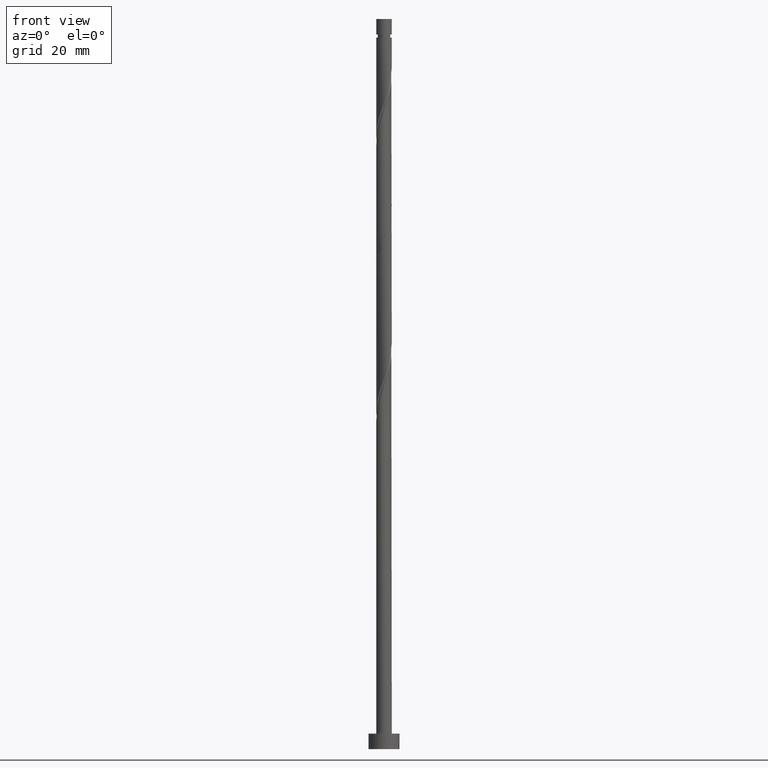
[diagram: clean part render]
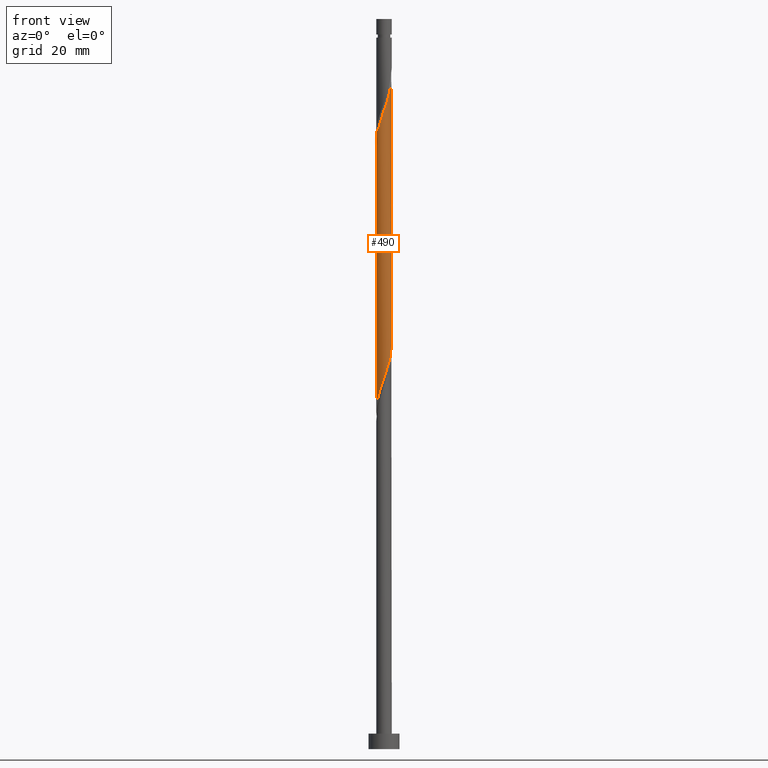
[diagram: same view with one face highlighted and labeled with its STEP entity id]
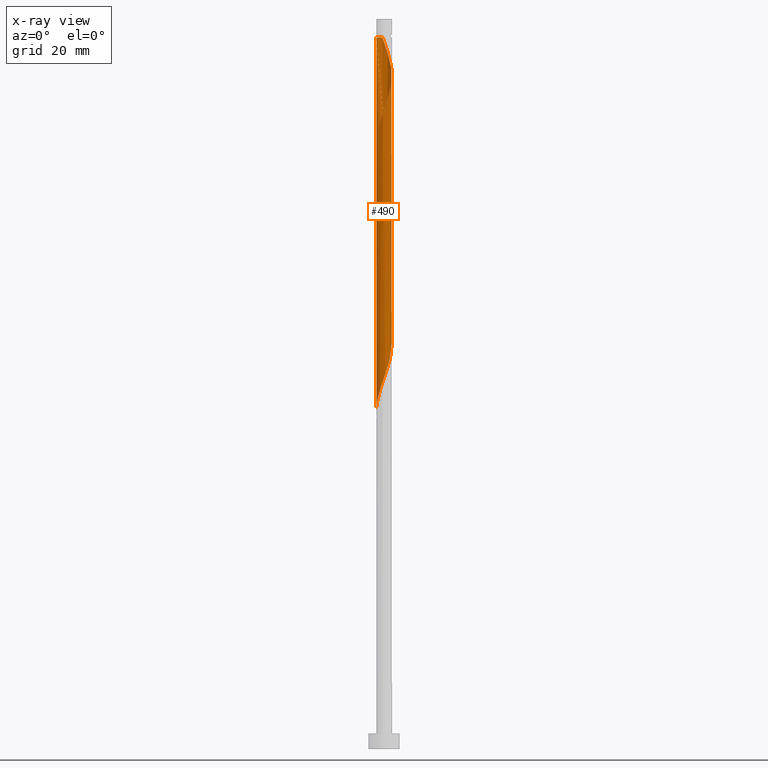
[diagram: x-ray of the same camera — body ghosted, the highlighted face saturated]
A machine part, front view. The second image highlights one B-rep face of the part: STEP entity #490.
The next image is the same camera in x-ray: the body ghosted, the highlighted face saturated — about 0% of this face is hidden behind the body in this view.
In plain terms, the highlighted cylindrical surface (bore or boss wall) has radius 1.5 mm, axis along (-0, -0, -1).
Its self-contained STEP definition (entity closure, byte-faithful):
#2 = CARTESIAN_POINT ( 'NONE',  ( -0.8912534666523059812, -1.225634408494018945, 69.32556668056672322 ) ) ;
#6 = CARTESIAN_POINT ( 'NONE',  ( -0.5436309926831534023, -1.398021939668450342, 122.0528394078394570 ) ) ;
#9 = CARTESIAN_POINT ( 'NONE',  ( 0.8912534666523060922, 1.225634408494018945, 109.3255666805667232 ) ) ;
#56 = CARTESIAN_POINT ( 'NONE',  ( 1.509919581836498992, -0.1290554202307516996, 129.9316272866273891 ) ) ;
#75 = CARTESIAN_POINT ( 'NONE',  ( 0.3426257832300799722, 1.476184276359228331, 135.9922333472334230 ) ) ;
#80 = CARTESIAN_POINT ( 'NONE',  ( 1.500000000000000666, -1.824732125826558579E-15, 105.3265363113827817 ) ) ;
#82 = CARTESIAN_POINT ( 'NONE',  ( 1.213159217434436332, 0.8821817914431659968, 132.9619303169303350 ) ) ;
#95 = LINE ( 'NONE', #217, #1092 ) ;
#99 = CARTESIAN_POINT ( 'NONE',  ( 1.306425335299753687, 0.7370568792752205667, 80.84071819571825301 ) ) ;
#101 = ORIENTED_EDGE ( 'NONE', *, *, #935, .F. ) ;
#108 = CARTESIAN_POINT ( 'NONE',  ( 0.7005518949784518279, 1.326358564808966412, 83.26496061996067510 ) ) ;
#113 = CARTESIAN_POINT ( 'NONE',  ( -0.8912534666523059812, -1.225634408494018945, 95.99223334723342305 ) ) ;
#119 = CARTESIAN_POINT ( 'NONE',  ( 0.5098503233045974525, -1.427082721123916764, 125.0831424381425023 ) ) ;
#123 = CARTESIAN_POINT ( 'NONE',  ( 1.339997810401561740, -0.7077558288161657218, 76.59829395329401791 ) ) ;
#130 = CARTESIAN_POINT ( 'NONE',  ( -1.461158848907850416, -0.3391383467823806952, 66.29526365026370627 ) ) ;
#157 = DIRECTION ( 'NONE',  ( -0.000000000000000000, -0.000000000000000000, -1.000000000000000000 ) ) ;
#164 = CARTESIAN_POINT ( 'NONE',  ( 0.5098503233045974525, 1.427082721123913878, 110.5376878926879272 ) ) ;
#183 = CARTESIAN_POINT ( 'NONE',  ( -1.500000000000002665, 1.002106987134251127E-15, 116.9609606861143618 ) ) ;
#192 = CARTESIAN_POINT ( 'NONE',  ( 1.500000000000000666, -1.824732125826558579E-15, 105.3265363113827817 ) ) ;
#194 = CARTESIAN_POINT ( 'NONE',  ( 1.339997810401564182, 0.7077558288161660549, 132.3558697108697970 ) ) ;
#203 = CARTESIAN_POINT ( 'NONE',  ( 1.485116343010916440, 0.3015657354974664583, 131.1437484987486073 ) ) ;
#205 = CARTESIAN_POINT ( 'NONE',  ( 1.500000000000000666, -1.824732125826558579E-15, 105.3265363113827817 ) ) ;
#217 = CARTESIAN_POINT ( 'NONE',  ( -1.500000000000000222, 0.000000000000000000, 141.4300000000000068 ) ) ;
#222 = EDGE_CURVE ( 'NONE', #1466, #1008, #692, .T. ) ;
#223 = CARTESIAN_POINT ( 'NONE',  ( -1.086320624467306262, 1.056607754070165273, 88.71950607450611415 ) ) ;
#232 = CARTESIAN_POINT ( 'NONE',  ( 0.5436309926831524031, -1.398021939668448788, 73.56799092299098675 ) ) ;
#238 = CARTESIAN_POINT ( 'NONE',  ( -1.412398115979204061, -0.5492212733340106068, 93.56799092299098675 ) ) ;
#245 = CARTESIAN_POINT ( 'NONE',  ( -0.3426257832300790840, 1.476184276359226111, 86.29526365026370627 ) ) ;
#252 = CARTESIAN_POINT ( 'NONE',  ( 0.8912534666523060922, 1.225634408494018945, 82.65890001390009445 ) ) ;
#254 = DIRECTION ( 'NONE',  ( -0.000000000000000000, -0.000000000000000000, -1.000000000000000000 ) ) ;
#261 = ORIENTED_EDGE ( 'NONE', *, *, #390, .F. ) ;
#266 = EDGE_LOOP ( 'NONE', ( #261, #298, #1161, #630, #307, #531, #1036, #101 ) ) ;
#286 = CARTESIAN_POINT ( 'NONE',  ( -1.339997810401561740, 0.7077558288161657218, 116.5982939532940179 ) ) ;
#298 = ORIENTED_EDGE ( 'NONE', *, *, #222, .T. ) ;
#304 = CARTESIAN_POINT ( 'NONE',  ( -0.2984962311320397688, 1.470000000000534435, 137.8104151654152361 ) ) ;
#307 = ORIENTED_EDGE ( 'NONE', *, *, #884, .F. ) ;
#310 = CARTESIAN_POINT ( 'NONE',  ( 0.000000000000000000, 0.000000000000000000, 141.4300000000000068 ) ) ;
#311 = CARTESIAN_POINT ( 'NONE',  ( -0.7446362021362256112, 1.319859602977670798, 114.1740515290515958 ) ) ;
#318 = AXIS2_PLACEMENT_3D ( 'NONE', #1391, #789, #1193 ) ;
#322 = VECTOR ( 'NONE', #254, 1000.000000000000000 ) ;
#335 = CARTESIAN_POINT ( 'NONE',  ( 0.7446362021362251671, -1.319859602977671464, 100.8407181957182530 ) ) ;
#342 = CARTESIAN_POINT ( 'NONE',  ( -1.339997810401561740, 0.7077558288161657218, 89.93162728662736072 ) ) ;
#349 = CARTESIAN_POINT ( 'NONE',  ( 0.5436309926831524031, -1.398021939668448788, 100.2346575896576724 ) ) ;
#351 = EDGE_CURVE ( 'NONE', #1086, #1008, #1471, .T. ) ;
#355 = CARTESIAN_POINT ( 'NONE',  ( 1.497517962423705384, -0.08625515763335814268, 78.41647577147585935 ) ) ;
#360 = CARTESIAN_POINT ( 'NONE',  ( 0.9154784133017656034, -1.188233678523918035, 74.78011213511220490 ) ) ;
#363 = CARTESIAN_POINT ( 'NONE',  ( 0.08714213895937543419, -1.512917278876089178, 123.8710212260212984 ) ) ;
#390 = EDGE_CURVE ( 'NONE', #1466, #1343, #1219, .T. ) ;
#402 = CARTESIAN_POINT ( 'NONE',  ( -0.3426257832300790840, 1.476184276359226111, 112.9619303169304061 ) ) ;
#411 = CARTESIAN_POINT ( 'NONE',  ( -0.08714213895937734933, 1.512917278876088956, 137.2043545593546696 ) ) ;
#418 = CARTESIAN_POINT ( 'NONE',  ( -1.500000000000000444, 1.510638891053134665E-15, 65.32653631138276751 ) ) ;
#434 = CARTESIAN_POINT ( 'NONE',  ( 0.1277418221353523453, 1.494550777617657866, 136.5982939532939326 ) ) ;
#437 = CARTESIAN_POINT ( 'NONE',  ( 1.497517962423705384, -0.08625515763335814268, 105.0831424381425165 ) ) ;
#448 = CARTESIAN_POINT ( 'NONE',  ( 1.086320624467306484, -1.056607754070165051, 75.38617274117281397 ) ) ;
#457 = CARTESIAN_POINT ( 'NONE',  ( 0.1277418221353513184, -1.494550777617656756, 72.35586971086975439 ) ) ;
#466 = CARTESIAN_POINT ( 'NONE',  ( 0.1277418221353513184, -1.494550777617656756, 99.02253637753642579 ) ) ;
#469 = CARTESIAN_POINT ( 'NONE',  ( -1.412557076706239423, -0.5046607821568164232, 118.4164757714758025 ) ) ;
#473 = CARTESIAN_POINT ( 'NONE',  ( 1.509919581836497215, 0.1290554202307506448, 79.02253637753645421 ) ) ;
#479 = CARTESIAN_POINT ( 'NONE',  ( 1.200452554620303314, 0.9248924852164298605, 81.44677880177884788 ) ) ;
#483 = CARTESIAN_POINT ( 'NONE',  ( -1.339997810401564182, -0.7077558288161663880, 119.0225363775364542 ) ) ;
#486 = CARTESIAN_POINT ( 'NONE',  ( 1.499999999999999778, 0.1717933910776870965, 105.8124962643540812 ) ) ;
#490 = ADVANCED_FACE ( 'NONE', ( #1225 ), #1370, .T. ) ;
#496 = CARTESIAN_POINT ( 'NONE',  ( -0.1277418221353517902, 1.494550777617656534, 112.3558697108697828 ) ) ;
#516 = DIRECTION ( 'NONE',  ( -0.000000000000000000, -0.000000000000000000, -1.000000000000000000 ) ) ;
#518 = AXIS2_PLACEMENT_3D ( 'NONE', #310, #516, #1475 ) ;
#526 = CARTESIAN_POINT ( 'NONE',  ( -1.213159217434434112, 0.8821817914431654417, 115.9922333472333946 ) ) ;
#531 = ORIENTED_EDGE ( 'NONE', *, *, #540, .F. ) ;
#533 = CARTESIAN_POINT ( 'NONE',  ( -1.412557076706237646, 0.5046607821568160901, 117.2043545593546554 ) ) ;
#540 = EDGE_CURVE ( 'NONE', #650, #1358, #1361, .T. ) ;
#577 = CARTESIAN_POINT ( 'NONE',  ( 1.412398115979204505, 0.5492212733340096076, 80.23465758965762973 ) ) ;
#583 = CARTESIAN_POINT ( 'NONE',  ( 0.7005518949784519389, -1.326358564808968410, 125.6892030442030830 ) ) ;
#586 = CARTESIAN_POINT ( 'NONE',  ( 1.339997810401561740, -0.7077558288161657218, 103.2649606199606609 ) ) ;
#590 = CARTESIAN_POINT ( 'NONE',  ( 0.8912534666523075355, -1.225634408494020944, 126.2952636502637205 ) ) ;
#592 = CARTESIAN_POINT ( 'NONE',  ( -1.485116343010912665, 0.3015657354974666249, 91.14374849874855045 ) ) ;
#597 = CARTESIAN_POINT ( 'NONE',  ( 1.045853010636305980, -1.075263446855226235, 126.9013242563243011 ) ) ;
#600 = CARTESIAN_POINT ( 'NONE',  ( 1.213159217434434334, -0.8821817914431652197, 75.99223334723339462 ) ) ;
#611 = CARTESIAN_POINT ( 'NONE',  ( -1.500000000000000444, -0.1717933910776834328, 65.81249626435409539 ) ) ;
#619 = CARTESIAN_POINT ( 'NONE',  ( -0.5436309926831524031, 1.398021939668448788, 113.5679909229909867 ) ) ;
#630 = ORIENTED_EDGE ( 'NONE', *, *, #1199, .T. ) ;
#650 = VERTEX_POINT ( 'NONE', #1084 ) ;
#660 = CARTESIAN_POINT ( 'NONE',  ( 1.461158848907850638, 0.3391383467823803066, 106.2952636502636921 ) ) ;
#692 = CIRCLE ( 'NONE', #318, 1.499999999999995781 ) ;
#697 = CARTESIAN_POINT ( 'NONE',  ( 0.2984962311319867001, 1.469999999999999973, 84.47708183208190746 ) ) ;
#704 = CARTESIAN_POINT ( 'NONE',  ( -0.2984962311319864781, -1.469999999999999973, 71.14374849874856466 ) ) ;
#711 = CARTESIAN_POINT ( 'NONE',  ( -1.497517962423705384, 0.08625515763335793451, 91.74980910480915952 ) ) ;
#718 = CARTESIAN_POINT ( 'NONE',  ( 0.5098503233045974525, 1.427082721123913878, 83.87102122602126997 ) ) ;
#727 = CARTESIAN_POINT ( 'NONE',  ( -0.5436309926831524031, 1.398021939668448788, 86.90132425632431534 ) ) ;
#744 = CARTESIAN_POINT ( 'NONE',  ( -1.500000000000002887, -0.04316328978573677477, 117.0830586908325728 ) ) ;
#765 = CARTESIAN_POINT ( 'NONE',  ( -0.2984962311320397133, 1.470000000000534435, 137.8104151654152361 ) ) ;
#780 = CARTESIAN_POINT ( 'NONE',  ( 1.306425335299753687, 0.7370568792752205667, 107.5073848623849386 ) ) ;
#789 = DIRECTION ( 'NONE',  ( -0.000000000000000000, -0.000000000000000000, -1.000000000000000000 ) ) ;
#791 =( BOUNDED_CURVE ( )  B_SPLINE_CURVE ( 2, ( #205, #1505, #437, #1397, #810, #586, #1159, #1418, #1181, #335, #349, #946, #466, #1060, #827, #1411, #1068, #113, #1405, #938, #1279, #238, #1287, #818, #711, #592, #1082, #342, #1299, #223, #952, #1530, #727, #245, #1293, #1425, #697, #718, #108, #252, #1174, #479, #99, #577, #1539, #473, #355, #834, #1054, #123, #600, #448, #360, #1520, #232, #842, #457, #930, #704, #1076, #1168, #2, #1307, #957, #1429, #1189, #130, #611, #418 ),
 .UNSPECIFIED., .F., .T. ) 
 B_SPLINE_CURVE_WITH_KNOTS ( ( 3, 2, 2, 2, 2, 2, 2, 2, 2, 2, 2, 2, 2, 2, 2, 2, 2, 2, 2, 2, 2, 2, 2, 2, 2, 2, 2, 2, 2, 2, 2, 2, 2, 2, 3 ),
 ( 0.5545252162417511066, 0.5568181818181817677, 0.5681818181818182323, 0.5795454545454545858, 0.5909090909090909394, 0.6022727272727272929, 0.6136363636363636465, 0.6250000000000000000, 0.6363636363636363535, 0.6477272727272727071, 0.6590909090909090606, 0.6704545454545454142, 0.6818181818181817677, 0.6931818181818182323, 0.7045454545454545858, 0.7159090909090909394, 0.7272727272727272929, 0.7386363636363636465, 0.7500000000000000000, 0.7613636363636363535, 0.7727272727272727071, 0.7840909090909090606, 0.7954545454545454142, 0.8068181818181817677, 0.8181818181818182323, 0.8295454545454545858, 0.8409090909090909394, 0.8522727272727272929, 0.8636363636363636465, 0.8750000000000000000, 0.8863636363636363535, 0.8977272727272727071, 0.9090909090909090606, 0.9204545454545454142, 0.9295252162417513286 ),
 .UNSPECIFIED. ) 
 CURVE ( )  GEOMETRIC_REPRESENTATION_ITEM ( )  RATIONAL_B_SPLINE_CURVE ( ( 0.9061101570135621230, 0.9072237824201443424, 0.9090909090909219392, 0.8998376744372241776, 0.9090909090909219392, 0.8998376744372241776, 0.9090909090909219392, 0.8998376744372241776, 0.9090909090909219392, 0.8998376744372241776, 0.9090909090909219392, 0.8998376744372241776, 0.9090909090909219392, 0.8998376744372241776, 0.9090909090909219392, 0.8998376744372241776, 0.9090909090909219392, 0.8998376744372241776, 0.9090909090909219392, 0.8998376744372241776, 0.9090909090909219392, 0.8998376744372241776, 0.9090909090909219392, 0.8998376744372241776, 0.9090909090909219392, 0.8998376744372241776, 0.9090909090909219392, 0.8998376744372241776, 0.9090909090909219392, 0.8998376744372241776, 0.9090909090909219392, 0.8998376744372241776, 0.9090909090909219392, 0.8998376744372241776, 0.9090909090909219392, 0.8998376744372241776, 0.9090909090909219392, 0.8998376744372241776, 0.9090909090909219392, 0.8998376744372241776, 0.9090909090909219392, 0.8998376744372241776, 0.9090909090909219392, 0.8998376744372241776, 0.9090909090909219392, 0.8998376744372241776, 0.9090909090909219392, 0.8998376744372241776, 0.9090909090909219392, 0.8998376744372241776, 0.9090909090909219392, 0.8998376744372241776, 0.9090909090909219392, 0.8998376744372241776, 0.9090909090909219392, 0.8998376744372241776, 0.9090909090909219392, 0.8998376744372241776, 0.9090909090909219392, 0.8998376744372241776, 0.9090909090909219392, 0.8998376744372241776, 0.9090909090909219392, 0.8998376744372241776, 0.9090909090909219392, 0.8998376744372241776, 0.9090909090909219392, 0.9017048011080016634, 0.9061101570135623451 ) ) 
 REPRESENTATION_ITEM ( '' )  );
#792 = CARTESIAN_POINT ( 'NONE',  ( 1.461158848907852637, -0.3391383467823813613, 129.3255666805666806 ) ) ;
#800 = CARTESIAN_POINT ( 'NONE',  ( 1.412557076706239423, 0.5046607821568162011, 131.7498091048091169 ) ) ;
#807 = DIRECTION ( 'NONE',  ( -0.000000000000000000, -0.000000000000000000, -1.000000000000000000 ) ) ;
#810 = CARTESIAN_POINT ( 'NONE',  ( 1.412557076706237646, -0.5046607821568163121, 103.8710212260212842 ) ) ;
#818 = CARTESIAN_POINT ( 'NONE',  ( -1.509919581836496993, -0.1290554202307511444, 92.35586971086975439 ) ) ;
#827 = CARTESIAN_POINT ( 'NONE',  ( -0.2984962311319864781, -1.469999999999999973, 97.81041516541522185 ) ) ;
#834 = CARTESIAN_POINT ( 'NONE',  ( 1.485116343010912665, -0.3015657354974667914, 77.81041516541522185 ) ) ;
#842 = CARTESIAN_POINT ( 'NONE',  ( 0.3426257832300793060, -1.476184276359225889, 72.96193031693037767 ) ) ;
#852 = CARTESIAN_POINT ( 'NONE',  ( -1.500000000000000444, -5.833160074363590502E-16, 118.6598696447161103 ) ) ;
#861 = CARTESIAN_POINT ( 'NONE',  ( -1.500000000000002665, 1.002106987134251127E-15, 116.9609606861143618 ) ) ;
#875 = CARTESIAN_POINT ( 'NONE',  ( -1.500000000000000222, 0.000000000000000000, 141.4300000000000068 ) ) ;
#876 = CARTESIAN_POINT ( 'NONE',  ( -1.500000000000000666, 0.04316328978573252817, 118.5377716399978993 ) ) ;
#884 = EDGE_CURVE ( 'NONE', #1358, #923, #791, .T. ) ;
#885 = CARTESIAN_POINT ( 'NONE',  ( 1.200452554620303314, 0.9248924852164298605, 108.1134454684455051 ) ) ;
#900 = CARTESIAN_POINT ( 'NONE',  ( -1.500000000000000444, 1.510638891053134665E-15, 65.32653631138276751 ) ) ;
#923 = VERTEX_POINT ( 'NONE', #900 ) ;
#930 = CARTESIAN_POINT ( 'NONE',  ( -0.08714213895937591992, -1.512917278876086735, 71.74980910480917373 ) ) ;
#935 = EDGE_CURVE ( 'NONE', #1343, #1358, #1311, .T. ) ;
#938 = CARTESIAN_POINT ( 'NONE',  ( -1.200452554620303980, -0.9248924852164294164, 94.78011213511221911 ) ) ;
#942 = CARTESIAN_POINT ( 'NONE',  ( -1.499999999999995781, 0.000000000000000000, 137.8104151654152361 ) ) ;
#944 = CARTESIAN_POINT ( 'NONE',  ( 1.306425335299755019, -0.7370568792752216769, 128.1134454684454909 ) ) ;
#946 = CARTESIAN_POINT ( 'NONE',  ( 0.3426257832300793060, -1.476184276359225889, 99.62859698359702065 ) ) ;
#949 = CARTESIAN_POINT ( 'NONE',  ( -1.213159217434436110, -0.8821817914431664409, 119.6285969835970064 ) ) ;
#952 = CARTESIAN_POINT ( 'NONE',  ( -0.9154784133017659364, 1.188233678523918035, 88.11344546844553349 ) ) ;
#957 = CARTESIAN_POINT ( 'NONE',  ( -1.200452554620303980, -0.9248924852164294164, 68.11344546844553349 ) ) ;
#959 = CARTESIAN_POINT ( 'NONE',  ( 1.500000000000000222, 1.836970198721030181E-16, 141.4300000000000068 ) ) ;
#961 = CARTESIAN_POINT ( 'NONE',  ( -0.3426257832300798056, -1.476184276359228553, 122.6589000139000945 ) ) ;
#969 = CARTESIAN_POINT ( 'NONE',  ( -1.086320624467308482, -1.056607754070166605, 120.2346575896576866 ) ) ;
#1008 = VERTEX_POINT ( 'NONE', #765 ) ;
#1012 = CARTESIAN_POINT ( 'NONE',  ( 1.086320624467309148, 1.056607754070166383, 133.5679909229910152 ) ) ;
#1016 = CARTESIAN_POINT ( 'NONE',  ( -1.497517962423705384, 0.08625515763335793451, 118.4164757714758593 ) ) ;
#1036 = ORIENTED_EDGE ( 'NONE', *, *, #540, .T. ) ;
#1054 = CARTESIAN_POINT ( 'NONE',  ( 1.412557076706237646, -0.5046607821568163121, 77.20435455935462699 ) ) ;
#1060 = CARTESIAN_POINT ( 'NONE',  ( -0.08714213895937591992, -1.512917278876086735, 98.41647577147583092 ) ) ;
#1068 = CARTESIAN_POINT ( 'NONE',  ( -0.7005518949784518279, -1.326358564808966412, 96.59829395329401791 ) ) ;
#1076 = CARTESIAN_POINT ( 'NONE',  ( -0.5098503233045972305, -1.427082721123913878, 70.53768789268794137 ) ) ;
#1082 = CARTESIAN_POINT ( 'NONE',  ( -1.412557076706237646, 0.5046607821568160901, 90.53768789268795558 ) ) ;
#1084 = CARTESIAN_POINT ( 'NONE',  ( 1.500000000000000222, 1.836970198721030181E-16, 137.8104151654152361 ) ) ;
#1086 = VERTEX_POINT ( 'NONE', #183 ) ;
#1092 = VECTOR ( 'NONE', #807, 1000.000000000000000 ) ;
#1121 = CARTESIAN_POINT ( 'NONE',  ( -0.9154784133017659364, 1.188233678523918035, 114.7801121351122049 ) ) ;
#1135 = CARTESIAN_POINT ( 'NONE',  ( 0.9154784133017670467, 1.188233678523919590, 134.1740515290515816 ) ) ;
#1159 = CARTESIAN_POINT ( 'NONE',  ( 1.213159217434434334, -0.8821817914431652197, 102.6589000139000660 ) ) ;
#1161 = ORIENTED_EDGE ( 'NONE', *, *, #351, .F. ) ;
#1168 = CARTESIAN_POINT ( 'NONE',  ( -0.7005518949784518279, -1.326358564808966412, 69.93162728662736072 ) ) ;
#1174 = CARTESIAN_POINT ( 'NONE',  ( 1.045853010636305092, 1.075263446855224680, 82.05283940783944274 ) ) ;
#1177 = CARTESIAN_POINT ( 'NONE',  ( -0.9154784133017673797, -1.188233678523919368, 120.8407181957182246 ) ) ;
#1181 = CARTESIAN_POINT ( 'NONE',  ( 0.9154784133017656034, -1.188233678523918035, 101.4467788017788763 ) ) ;
#1186 = CARTESIAN_POINT ( 'NONE',  ( -0.7446362021362270545, -1.319859602977673241, 121.4467788017789189 ) ) ;
#1189 = CARTESIAN_POINT ( 'NONE',  ( -1.412398115979204061, -0.5492212733340106068, 66.90132425632430113 ) ) ;
#1193 = DIRECTION ( 'NONE',  ( -1.000000000000000000, 0.000000000000000000, 0.000000000000000000 ) ) ;
#1197 = CARTESIAN_POINT ( 'NONE',  ( 0.7005518949784518279, 1.326358564808966412, 109.9316272866273181 ) ) ;
#1199 = EDGE_CURVE ( 'NONE', #1086, #923, #95, .T. ) ;
#1208 = VECTOR ( 'NONE', #157, 1000.000000000000000 ) ;
#1219 = LINE ( 'NONE', #875, #1208 ) ;
#1225 = FACE_OUTER_BOUND ( 'NONE', #266, .T. ) ;
#1249 = CARTESIAN_POINT ( 'NONE',  ( -1.086320624467306262, 1.056607754070165273, 115.3861727411728140 ) ) ;
#1251 = CARTESIAN_POINT ( 'NONE',  ( 1.497517962423706939, 0.08625515763335746267, 130.5376878926879272 ) ) ;
#1268 = CARTESIAN_POINT ( 'NONE',  ( 0.7446362021362264993, 1.319859602977673241, 134.7801121351122333 ) ) ;
#1273 = CARTESIAN_POINT ( 'NONE',  ( -1.500000000000000444, -5.833160074363590502E-16, 118.6598696447161103 ) ) ;
#1279 = CARTESIAN_POINT ( 'NONE',  ( -1.306425335299753909, -0.7370568792752201226, 94.17405152905158161 ) ) ;
#1287 = CARTESIAN_POINT ( 'NONE',  ( -1.461158848907850416, -0.3391383467823806952, 92.96193031693034925 ) ) ;
#1293 = CARTESIAN_POINT ( 'NONE',  ( -0.1277418221353517902, 1.494550777617656534, 85.68920304420311140 ) ) ;
#1299 = CARTESIAN_POINT ( 'NONE',  ( -1.213159217434434112, 0.8821817914431654417, 89.32556668056673743 ) ) ;
#1303 = CARTESIAN_POINT ( 'NONE',  ( -1.485116343010916440, -0.3015657354974666249, 117.8104151654152503 ) ) ;
#1307 = CARTESIAN_POINT ( 'NONE',  ( -1.045853010636305314, -1.075263446855224458, 68.71950607450612836 ) ) ;
#1311 =( BOUNDED_CURVE ( )  B_SPLINE_CURVE ( 2, ( #852, #876, #1016, #1449, #533, #286, #526, #1249, #1121, #311, #619, #402, #496, #1371, #1317, #164, #1197, #9, #1483, #885, #780, #1489, #660, #486, #192 ),
 .UNSPECIFIED., .F., .T. ) 
 B_SPLINE_CURVE_WITH_KNOTS ( ( 3, 2, 2, 2, 2, 2, 2, 2, 2, 2, 2, 2, 3 ),
 ( 0.4295252162417512731, 0.4318181818181818232, 0.4431818181818181768, 0.4545454545454545303, 0.4659090909090908839, 0.4772727272727272929, 0.4886363636363636465, 0.5000000000000000000, 0.5113636363636363535, 0.5227272727272727071, 0.5340909090909090606, 0.5454545454545454142, 0.5545252162417511066 ),
 .UNSPECIFIED. ) 
 CURVE ( )  GEOMETRIC_REPRESENTATION_ITEM ( )  RATIONAL_B_SPLINE_CURVE ( ( 0.9061101570135621230, 0.9072237824201443424, 0.9090909090909219392, 0.8998376744372241776, 0.9090909090909219392, 0.8998376744372241776, 0.9090909090909219392, 0.8998376744372241776, 0.9090909090909219392, 0.8998376744372241776, 0.9090909090909219392, 0.8998376744372241776, 0.9090909090909219392, 0.8998376744372241776, 0.9090909090909219392, 0.8998376744372241776, 0.9090909090909219392, 0.8998376744372241776, 0.9090909090909219392, 0.8998376744372241776, 0.9090909090909219392, 0.8998376744372241776, 0.9090909090909219392, 0.9017048011080017744, 0.9061101570135621230 ) ) 
 REPRESENTATION_ITEM ( '' )  );
#1317 = CARTESIAN_POINT ( 'NONE',  ( 0.2984962311319867001, 1.469999999999999973, 111.1437484987485504 ) ) ;
#1343 = VERTEX_POINT ( 'NONE', #1273 ) ;
#1358 = VERTEX_POINT ( 'NONE', #80 ) ;
#1361 = LINE ( 'NONE', #959, #322 ) ;
#1370 = CYLINDRICAL_SURFACE ( 'NONE', #518, 1.500000000000000222 ) ;
#1371 = CARTESIAN_POINT ( 'NONE',  ( 0.08714213895937553134, 1.512917278876086513, 111.7498091048091737 ) ) ;
#1382 = CARTESIAN_POINT ( 'NONE',  ( 1.412398115979206725, -0.5492212733340114950, 128.7195060745061710 ) ) ;
#1391 = CARTESIAN_POINT ( 'NONE',  ( 0.000000000000000000, 0.000000000000000000, 137.8104151654152361 ) ) ;
#1393 = CARTESIAN_POINT ( 'NONE',  ( 0.5436309926831528472, 1.398021939668450342, 135.3861727411727713 ) ) ;
#1397 = CARTESIAN_POINT ( 'NONE',  ( 1.485116343010912665, -0.3015657354974667914, 104.4770818320818790 ) ) ;
#1401 = CARTESIAN_POINT ( 'NONE',  ( 0.2984962311319862560, -1.470000000000002638, 124.4770818320818790 ) ) ;
#1405 = CARTESIAN_POINT ( 'NONE',  ( -1.045853010636305314, -1.075263446855224458, 95.38617274117284239 ) ) ;
#1411 = CARTESIAN_POINT ( 'NONE',  ( -0.5098503233045972305, -1.427082721123913878, 97.20435455935461277 ) ) ;
#1418 = CARTESIAN_POINT ( 'NONE',  ( 1.086320624467306484, -1.056607754070165051, 102.0528394078394712 ) ) ;
#1425 = CARTESIAN_POINT ( 'NONE',  ( 0.08714213895937553134, 1.512917278876086513, 85.08314243814248812 ) ) ;
#1429 = CARTESIAN_POINT ( 'NONE',  ( -1.306425335299753909, -0.7370568792752201226, 67.50738486238493863 ) ) ;
#1436 = CARTESIAN_POINT ( 'NONE',  ( -0.1277418221353521788, -1.494550777617657866, 123.2649606199606467 ) ) ;
#1449 = CARTESIAN_POINT ( 'NONE',  ( -1.485116343010912665, 0.3015657354974666249, 117.8104151654152076 ) ) ;
#1466 = VERTEX_POINT ( 'NONE', #942 ) ;
#1471 =( BOUNDED_CURVE ( )  B_SPLINE_CURVE ( 2, ( #861, #744, #1535, #1303, #469, #483, #949, #969, #1177, #1186, #6, #961, #1436, #363, #1401, #119, #583, #590, #597, #1527, #944, #1382, #792, #56, #1251, #203, #800, #194, #82, #1012, #1135, #1268, #1393, #75, #434, #411, #304 ),
 .UNSPECIFIED., .F., .T. ) 
 B_SPLINE_CURVE_WITH_KNOTS ( ( 3, 2, 2, 2, 2, 2, 2, 2, 2, 2, 2, 2, 2, 2, 2, 2, 2, 2, 3 ),
 ( 0.5545252162417515507, 0.5568181818181818787, 0.5681818181818181213, 0.5795454545454545858, 0.5909090909090908283, 0.6022727272727272929, 0.6136363636363636465, 0.6250000000000000000, 0.6363636363636364646, 0.6477272727272727071, 0.6590909090909091717, 0.6704545454545455252, 0.6818181818181819898, 0.6931818181818182323, 0.7045454545454546968, 0.7159090909090909394, 0.7272727272727274039, 0.7386363636363637575, 0.7500000000000001110 ),
 .UNSPECIFIED. ) 
 CURVE ( )  GEOMETRIC_REPRESENTATION_ITEM ( )  RATIONAL_B_SPLINE_CURVE ( ( 0.9061101570135683403, 0.9072237824201505596, 0.9090909090909280454, 0.8998376744372300617, 0.9090909090909280454, 0.8998376744372300617, 0.9090909090909280454, 0.8998376744372300617, 0.9090909090909280454, 0.8998376744372300617, 0.9090909090909280454, 0.8998376744372300617, 0.9090909090909280454, 0.8998376744372300617, 0.9090909090909280454, 0.8998376744372300617, 0.9090909090909280454, 0.8998376744372300617, 0.9090909090909280454, 0.8998376744372300617, 0.9090909090909280454, 0.8998376744372300617, 0.9090909090909280454, 0.8998376744372300617, 0.9090909090909280454, 0.8998376744372300617, 0.9090909090909280454, 0.8998376744372300617, 0.9090909090909280454, 0.8998376744372300617, 0.9090909090909280454, 0.8998376744372300617, 0.9090909090909280454, 0.8998376744372300617, 0.9090909090909280454, 0.8998376744372299507, 0.9090909090909281565 ) ) 
 REPRESENTATION_ITEM ( '' )  );
#1475 = DIRECTION ( 'NONE',  ( -1.000000000000000000, 0.000000000000000000, 0.000000000000000000 ) ) ;
#1483 = CARTESIAN_POINT ( 'NONE',  ( 1.045853010636305092, 1.075263446855224680, 108.7195060745061426 ) ) ;
#1489 = CARTESIAN_POINT ( 'NONE',  ( 1.412398115979204505, 0.5492212733340096076, 106.9013242563243011 ) ) ;
#1505 = CARTESIAN_POINT ( 'NONE',  ( 1.500000000000000666, -0.04316328978573068936, 105.2044383066645707 ) ) ;
#1520 = CARTESIAN_POINT ( 'NONE',  ( 0.7446362021362251671, -1.319859602977671464, 74.17405152905161003 ) ) ;
#1527 = CARTESIAN_POINT ( 'NONE',  ( 1.200452554620305756, -0.9248924852164317478, 127.5073848623849102 ) ) ;
#1530 = CARTESIAN_POINT ( 'NONE',  ( -0.7446362021362256112, 1.319859602977670798, 87.50738486238492442 ) ) ;
#1535 = CARTESIAN_POINT ( 'NONE',  ( -1.497517962423706939, -0.08625515763335761532, 117.2043545593546128 ) ) ;
#1539 = CARTESIAN_POINT ( 'NONE',  ( 1.461158848907850638, 0.3391383467823803066, 79.62859698359704907 ) ) ;